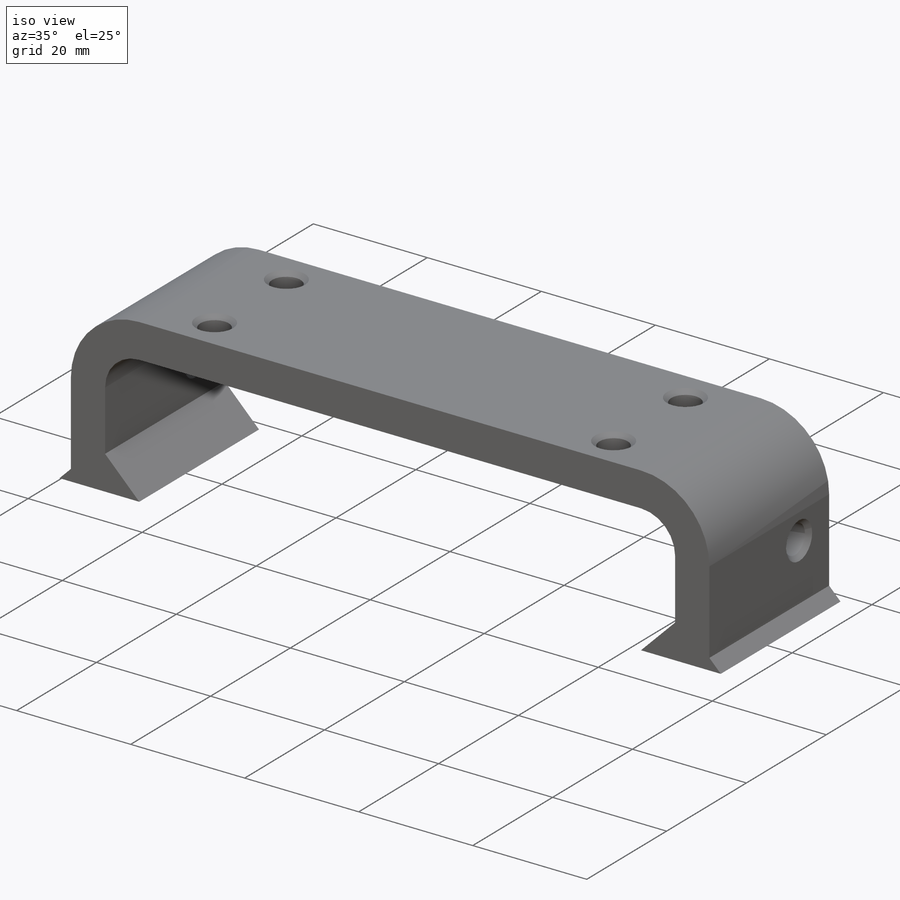
[diagram: iso view]
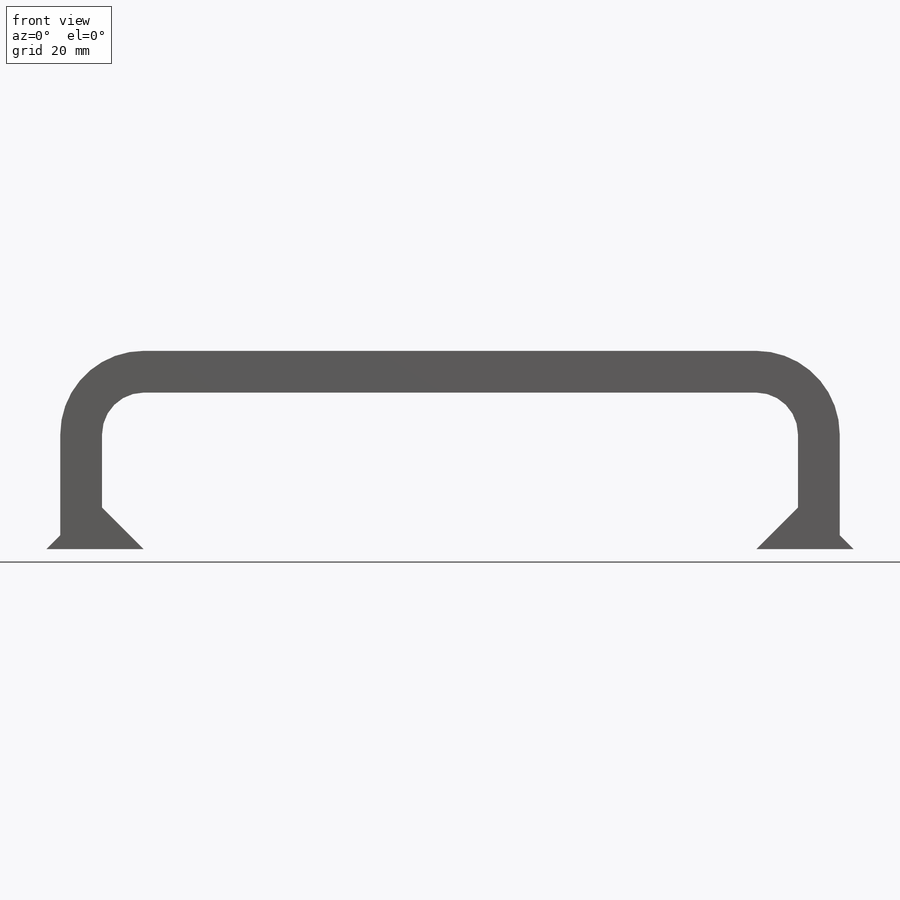
[diagram: front view]
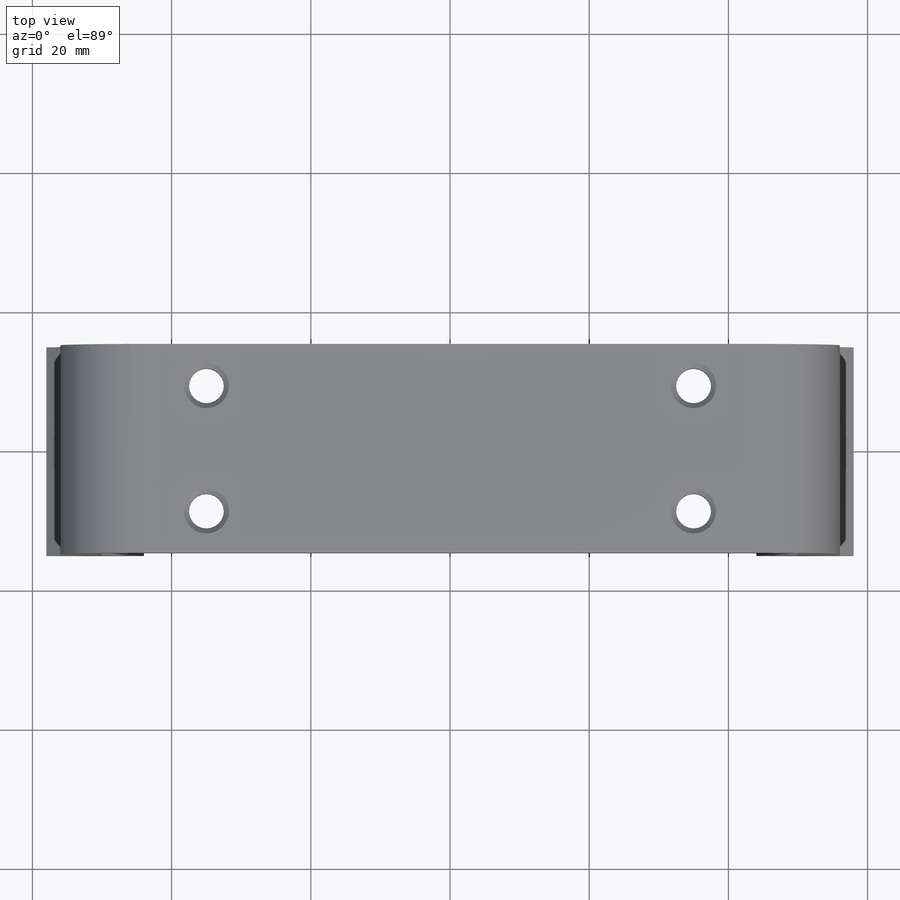
[diagram: top view]
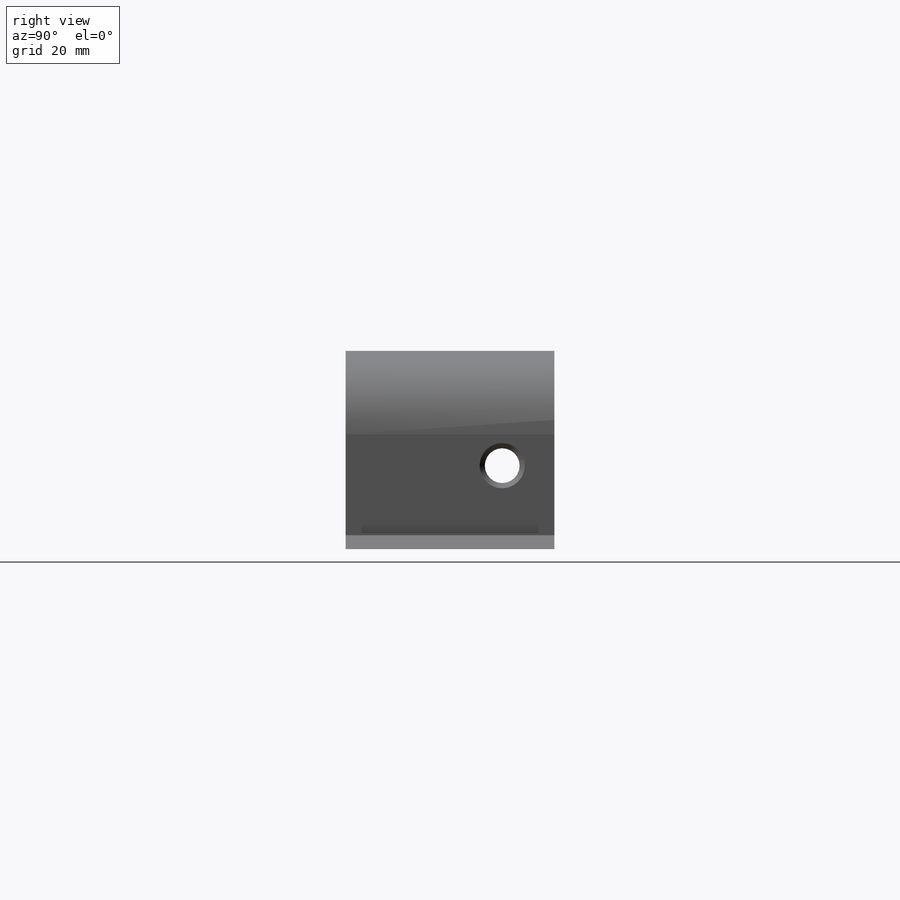
[diagram: right view]
SOLIDWORKS PART (.sldprt)
format: sldprt  version: not decoded by parser v0  size: 287,744 bytes
history: native  units: mm
features: sketch x10, hole x5, material x4, sheet_metal_op x3, thread x2, plane x1, extrude x1 + 3 further entries (+11 scaffold rows collapsed)
feature tree (40):
  scaffold x11  (default folders/planes/origin — collapsed)
  material  " 09Г2С ГОСТ 4543-71"
  material  "PTricksFreeParameters"
  material  "PTricksEqu"
  material  "PTricksFreeParameters"
  plane  "Спереди"
  "Начало координат"
  sketch  "Эскиз1"  dims[c1.D1=~34.864234mm c2.D1=28.5mm c2.D2=112.0mm]
  sheet_metal_op  "Листовой металл1"  Толщина=6mm
  sheet_metal_op  "Базовая кромка1"
  sheet_metal_op  "Основание2"
  hole  "Отверстие обработанное метчиком M6x1.01"  [1 undecoded]
  sketch  "Трехмерный эскиз1"  dims[D1=9.0mm D2=70.0mm D3=12.0mm D4=7.5mm]
  sketch  "Эскиз4"  dims[hole-wizard template sketch: 55 standard entries collapsed; hole parameters kept: c17.Глубина проходного сверла=6.0mm c17.Диаметр передней зенковки=6.5mm c17.D4=~3.666174mm c17.Угол передней зенковки=90.0deg]
  thread  "Отверстие резьбы1"  Diameter=6mm  [1 undecoded]
  sketch  "Отверстие резьбы2"  dims[D2=6.0mm]
  sketch  "Отверстие резьбы3"  dims[D2=6.0mm]
  sketch  "Отверстие резьбы4"  dims[D2=6.0mm]
  sketch  "Отверстие резьбы5"  dims[D2=6.0mm]
  sketch  "Отверстие резьбы6"  dims[D2=6.0mm]
  sketch  "Эскиз5"  dims[D1=6.0mm D2=2.0mm]
  extrude  "Вытянуть1"  [1 undecoded]
  hole  "сварка [1]"  [1 undecoded]
  hole  "сварка [2]"  [1 undecoded]
  hole  "мелк сварка [3]"  [1 undecoded]
  hole  "мелк сварка [4]"  [1 undecoded]
  "Развертка1"
  sketch  "Сгиб-Линии1"
  thread  "Плоское состояние-<Основание2>1"  [2 undecoded]
  "Преобразование эскиза1"
decode coverage: 11 of 21 modeling features carry decoded parameters; 3 rows unclassified (native names shown)
note: ~ marks probable driven/reference dimensions
note: 9 parameter values undecoded
summary: no parameter record found for 7 features
note: suppression state not decoded; provenance and decode notes live in map.json
